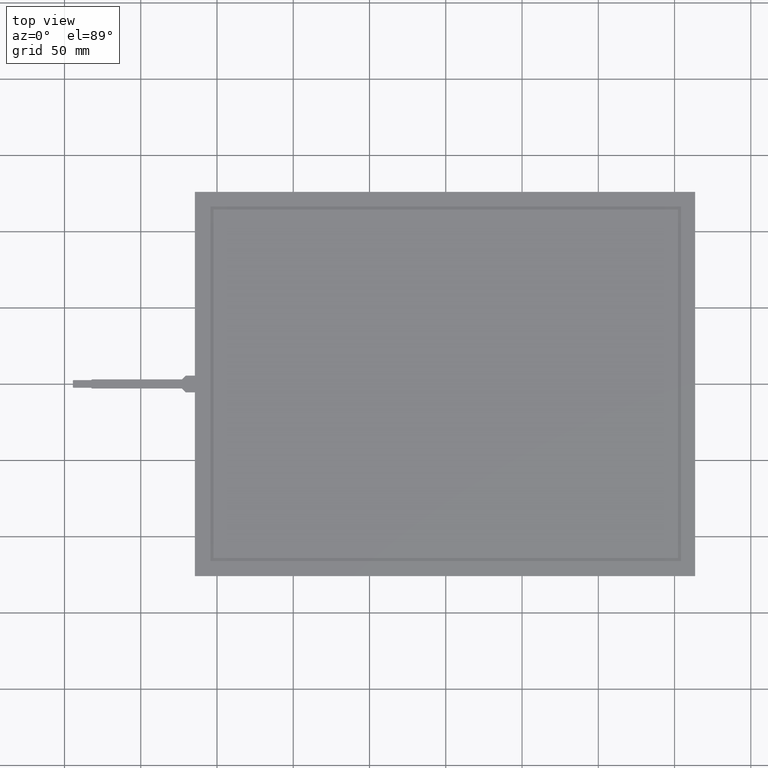
[diagram: clean part render]
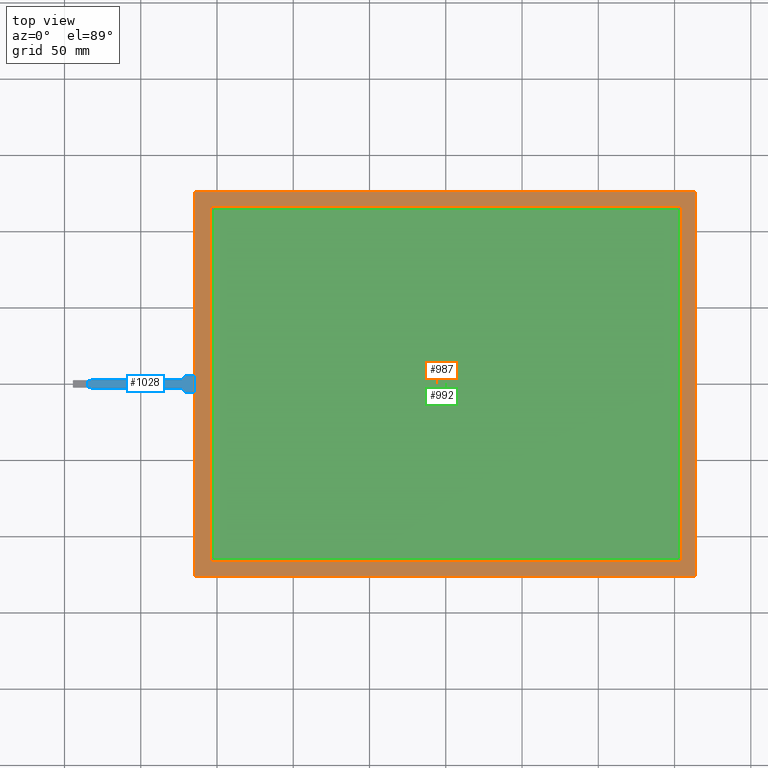
[diagram: same view with three faces highlighted in distinct colors, each labeled with its STEP entity id]
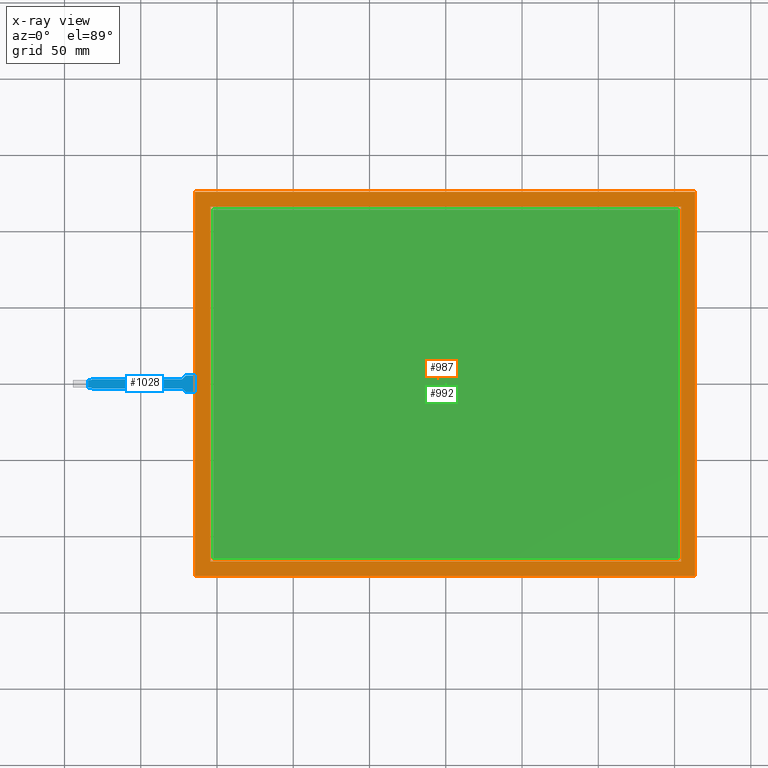
[diagram: x-ray of the same camera — body ghosted, the three highlighted faces saturated]
A machine part, top view with three faces highlighted in distinct colors.
The next image is the same camera in x-ray (body ghosted, the three faces saturated) — at least one of them is partly hidden behind the body in this view.
Their STEP definitions:

[orange] entity #987 — the highlighted planar face has unit normal (0, 0, 1).
#67=FACE_BOUND('',#131,.T.);
#77=FACE_OUTER_BOUND('',#130,.T.);
#130=EDGE_LOOP('',(#696,#697,#698,#699));
#131=EDGE_LOOP('',(#700,#701,#702,#703));
#186=LINE('',#1399,#312);
#190=LINE('',#1407,#316);
#193=LINE('',#1413,#319);
#196=LINE('',#1418,#322);
#198=LINE('',#1424,#324);
#199=LINE('',#1426,#325);
#200=LINE('',#1428,#326);
#201=LINE('',#1429,#327);
#312=VECTOR('',#1139,10.);
#316=VECTOR('',#1145,10.);
#319=VECTOR('',#1150,10.);
#322=VECTOR('',#1155,10.);
#324=VECTOR('',#1161,10.);
#325=VECTOR('',#1162,10.);
#326=VECTOR('',#1163,10.);
#327=VECTOR('',#1164,10.);
#434=VERTEX_POINT('',#1397);
#435=VERTEX_POINT('',#1398);
#438=VERTEX_POINT('',#1406);
#440=VERTEX_POINT('',#1412);
#442=VERTEX_POINT('',#1422);
#443=VERTEX_POINT('',#1423);
#444=VERTEX_POINT('',#1425);
#445=VERTEX_POINT('',#1427);
#530=EDGE_CURVE('',#434,#435,#186,.T.);
#534=EDGE_CURVE('',#438,#434,#190,.T.);
#537=EDGE_CURVE('',#440,#438,#193,.T.);
#540=EDGE_CURVE('',#435,#440,#196,.T.);
#542=EDGE_CURVE('',#442,#443,#198,.T.);
#543=EDGE_CURVE('',#443,#444,#199,.T.);
#544=EDGE_CURVE('',#444,#445,#200,.T.);
#545=EDGE_CURVE('',#445,#442,#201,.T.);
#696=ORIENTED_EDGE('',*,*,#542,.T.);
#697=ORIENTED_EDGE('',*,*,#543,.T.);
#698=ORIENTED_EDGE('',*,*,#544,.T.);
#699=ORIENTED_EDGE('',*,*,#545,.T.);
#700=ORIENTED_EDGE('',*,*,#530,.T.);
#701=ORIENTED_EDGE('',*,*,#540,.T.);
#702=ORIENTED_EDGE('',*,*,#537,.T.);
#703=ORIENTED_EDGE('',*,*,#534,.T.);
#941=PLANE('',#1060);
#987=ADVANCED_FACE('',(#77,#67),#941,.T.);
#1060=AXIS2_PLACEMENT_3D('',#1421,#1159,#1160);
#1139=DIRECTION('',(-2.29108792699946E-16,1.,0.));
#1145=DIRECTION('',(-1.,-1.72668584330776E-16,0.));
#1150=DIRECTION('',(7.63695975666488E-17,-1.,0.));
#1155=DIRECTION('',(1.,0.,0.));
#1159=DIRECTION('center_axis',(0.,0.,1.));
#1160=DIRECTION('ref_axis',(1.,0.,0.));
#1161=DIRECTION('',(-1.,0.,0.));
#1162=DIRECTION('',(4.22942104619107E-16,-1.,0.));
#1163=DIRECTION('',(1.,5.41572207134223E-17,0.));
#1164=DIRECTION('',(0.,1.,0.));
#1397=CARTESIAN_POINT('',(-154.315,-116.3,0.));
#1398=CARTESIAN_POINT('',(-154.315,116.3,0.));
#1399=CARTESIAN_POINT('',(-154.315,-58.15,0.));
#1406=CARTESIAN_POINT('',(154.315,-116.3,0.));
#1407=CARTESIAN_POINT('',(76.905,-116.3,0.));
#1412=CARTESIAN_POINT('',(154.315,116.3,0.));
#1413=CARTESIAN_POINT('',(154.315,58.15,0.));
#1418=CARTESIAN_POINT('',(-77.41,116.3,0.));
#1421=CARTESIAN_POINT('Origin',(-0.505000000000013,-8.88178419700125E-15,
0.));
#1422=CARTESIAN_POINT('',(163.495,126.,0.));
#1423=CARTESIAN_POINT('',(-164.505,126.,0.));
#1424=CARTESIAN_POINT('',(163.495,126.,0.));
#1425=CARTESIAN_POINT('',(-164.505,-126.,0.));
#1426=CARTESIAN_POINT('',(-164.505,126.,0.));
#1427=CARTESIAN_POINT('',(163.495,-126.,0.));
#1428=CARTESIAN_POINT('',(-164.505,-126.,0.));
#1429=CARTESIAN_POINT('',(163.495,-126.,0.));

[blue] entity #1028 — the highlighted planar face has unit normal (0, 0, 1).
#118=FACE_OUTER_BOUND('',#172,.T.);
#172=EDGE_LOOP('',(#908,#909,#910,#911,#912,#913,#914,#915,#916,#917,#918,
#919));
#264=LINE('',#1583,#390);
#267=LINE('',#1589,#393);
#271=LINE('',#1598,#397);
#275=LINE('',#1606,#401);
#278=LINE('',#1612,#404);
#281=LINE('',#1618,#407);
#284=LINE('',#1624,#410);
#287=LINE('',#1629,#413);
#289=LINE('',#1633,#415);
#292=LINE('',#1639,#418);
#295=LINE('',#1645,#421);
#298=LINE('',#1650,#424);
#390=VECTOR('',#1307,10.);
#393=VECTOR('',#1312,10.);
#397=VECTOR('',#1320,10.);
#401=VECTOR('',#1326,10.);
#404=VECTOR('',#1331,10.);
#407=VECTOR('',#1336,10.);
#410=VECTOR('',#1341,10.);
#413=VECTOR('',#1346,10.);
#415=VECTOR('',#1350,10.);
#418=VECTOR('',#1355,10.);
#421=VECTOR('',#1360,10.);
#424=VECTOR('',#1365,10.);
#495=VERTEX_POINT('',#1580);
#496=VERTEX_POINT('',#1582);
#498=VERTEX_POINT('',#1588);
#500=VERTEX_POINT('',#1596);
#501=VERTEX_POINT('',#1597);
#504=VERTEX_POINT('',#1605);
#506=VERTEX_POINT('',#1611);
#508=VERTEX_POINT('',#1617);
#510=VERTEX_POINT('',#1623);
#512=VERTEX_POINT('',#1632);
#514=VERTEX_POINT('',#1638);
#516=VERTEX_POINT('',#1644);
#620=EDGE_CURVE('',#496,#495,#264,.T.);
#623=EDGE_CURVE('',#498,#496,#267,.T.);
#627=EDGE_CURVE('',#500,#501,#271,.T.);
#631=EDGE_CURVE('',#501,#504,#275,.T.);
#634=EDGE_CURVE('',#504,#506,#278,.T.);
#637=EDGE_CURVE('',#506,#508,#281,.T.);
#640=EDGE_CURVE('',#508,#510,#284,.T.);
#643=EDGE_CURVE('',#510,#498,#287,.T.);
#645=EDGE_CURVE('',#495,#512,#289,.T.);
#648=EDGE_CURVE('',#512,#514,#292,.T.);
#651=EDGE_CURVE('',#514,#516,#295,.T.);
#654=EDGE_CURVE('',#516,#500,#298,.T.);
#908=ORIENTED_EDGE('',*,*,#623,.T.);
#909=ORIENTED_EDGE('',*,*,#620,.T.);
#910=ORIENTED_EDGE('',*,*,#645,.T.);
#911=ORIENTED_EDGE('',*,*,#648,.T.);
#912=ORIENTED_EDGE('',*,*,#651,.T.);
#913=ORIENTED_EDGE('',*,*,#654,.T.);
#914=ORIENTED_EDGE('',*,*,#627,.T.);
#915=ORIENTED_EDGE('',*,*,#631,.T.);
#916=ORIENTED_EDGE('',*,*,#634,.T.);
#917=ORIENTED_EDGE('',*,*,#637,.T.);
#918=ORIENTED_EDGE('',*,*,#640,.T.);
#919=ORIENTED_EDGE('',*,*,#643,.T.);
#976=PLANE('',#1113);
#1028=ADVANCED_FACE('',(#118),#976,.T.);
#1113=AXIS2_PLACEMENT_3D('',#1652,#1367,#1368);
#1307=DIRECTION('',(1.,7.40148683083438E-16,0.));
#1312=DIRECTION('',(0.,-1.,0.));
#1320=DIRECTION('',(0.,1.,0.));
#1326=DIRECTION('',(-1.,-7.40148683083436E-16,0.));
#1331=DIRECTION('',(-0.707106781186542,-0.707106781186553,0.));
#1336=DIRECTION('',(-1.,-1.88173394004264E-16,0.));
#1341=DIRECTION('',(-0.707106781186559,-0.707106781186537,0.));
#1346=DIRECTION('',(-1.,-9.25185853854298E-16,0.));
#1350=DIRECTION('',(0.707106781186548,-0.707106781186548,0.));
#1355=DIRECTION('',(1.,3.76346788008528E-16,0.));
#1360=DIRECTION('',(0.707106781186547,-0.707106781186548,0.));
#1365=DIRECTION('',(1.,0.,0.));
#1367=DIRECTION('center_axis',(0.,0.,1.));
#1368=DIRECTION('ref_axis',(1.,0.,0.));
#1580=CARTESIAN_POINT('',(-232.505,-2.50000000000001,0.2));
#1582=CARTESIAN_POINT('',(-234.505,-2.50000000000001,0.2));
#1583=CARTESIAN_POINT('',(-244.505,-2.50000000000002,0.2));
#1588=CARTESIAN_POINT('',(-234.505,2.49999999999999,0.2));
#1589=CARTESIAN_POINT('',(-234.505,-1.25,0.2));
#1596=CARTESIAN_POINT('',(-164.505,-5.5,0.2));
#1597=CARTESIAN_POINT('',(-164.505,5.5,0.2));
#1598=CARTESIAN_POINT('',(-164.505,-5.5,0.2));
#1605=CARTESIAN_POINT('',(-170.505,5.5,0.2));
#1606=CARTESIAN_POINT('',(-164.505,5.5,0.2));
#1611=CARTESIAN_POINT('',(-173.005,3.,0.2));
#1612=CARTESIAN_POINT('',(-170.505,5.5,0.2));
#1617=CARTESIAN_POINT('',(-232.005,2.99999999999998,0.2));
#1618=CARTESIAN_POINT('',(-173.005,3.,0.2));
#1623=CARTESIAN_POINT('',(-232.505,2.49999999999999,0.2));
#1624=CARTESIAN_POINT('',(-232.005,2.99999999999998,0.2));
#1629=CARTESIAN_POINT('',(-232.505,2.49999999999999,0.2));
#1632=CARTESIAN_POINT('',(-232.005,-3.00000000000002,0.2));
#1633=CARTESIAN_POINT('',(-232.505,-2.50000000000001,0.2));
#1638=CARTESIAN_POINT('',(-173.005,-2.99999999999999,0.2));
#1639=CARTESIAN_POINT('',(-232.005,-3.00000000000002,0.2));
#1644=CARTESIAN_POINT('',(-170.505,-5.5,0.2));
#1645=CARTESIAN_POINT('',(-173.005,-2.99999999999999,0.2));
#1650=CARTESIAN_POINT('',(-170.505,-5.5,0.2));
#1652=CARTESIAN_POINT('Origin',(-204.505,1.11022302462516E-15,0.2));

[green] entity #992 — the highlighted planar face has unit normal (0, 0, 1).
#82=FACE_OUTER_BOUND('',#136,.T.);
#136=EDGE_LOOP('',(#720,#721,#722,#723));
#174=LINE('',#1375,#300);
#178=LINE('',#1383,#304);
#181=LINE('',#1389,#307);
#184=LINE('',#1394,#310);
#300=VECTOR('',#1119,10.);
#304=VECTOR('',#1125,10.);
#307=VECTOR('',#1130,10.);
#310=VECTOR('',#1135,10.);
#426=VERTEX_POINT('',#1373);
#427=VERTEX_POINT('',#1374);
#430=VERTEX_POINT('',#1382);
#432=VERTEX_POINT('',#1388);
#518=EDGE_CURVE('',#426,#427,#174,.T.);
#522=EDGE_CURVE('',#430,#426,#178,.T.);
#525=EDGE_CURVE('',#432,#430,#181,.T.);
#528=EDGE_CURVE('',#427,#432,#184,.T.);
#720=ORIENTED_EDGE('',*,*,#518,.T.);
#721=ORIENTED_EDGE('',*,*,#528,.T.);
#722=ORIENTED_EDGE('',*,*,#525,.T.);
#723=ORIENTED_EDGE('',*,*,#522,.T.);
#946=PLANE('',#1065);
#992=ADVANCED_FACE('',(#82),#946,.T.);
#1065=AXIS2_PLACEMENT_3D('',#1446,#1181,#1182);
#1119=DIRECTION('',(1.,0.,0.));
#1125=DIRECTION('',(0.,-1.,0.));
#1130=DIRECTION('',(-1.,0.,0.));
#1135=DIRECTION('',(0.,1.,0.));
#1181=DIRECTION('center_axis',(0.,0.,1.));
#1182=DIRECTION('ref_axis',(1.,0.,0.));
#1373=CARTESIAN_POINT('',(-152.315,-114.3,0.));
#1374=CARTESIAN_POINT('',(152.315,-114.3,0.));
#1375=CARTESIAN_POINT('',(-76.41,-114.3,0.));
#1382=CARTESIAN_POINT('',(-152.315,114.3,0.));
#1383=CARTESIAN_POINT('',(-152.315,57.15,0.));
#1388=CARTESIAN_POINT('',(152.315,114.3,0.));
#1389=CARTESIAN_POINT('',(75.905,114.3,0.));
#1394=CARTESIAN_POINT('',(152.315,-57.15,0.));
#1446=CARTESIAN_POINT('Origin',(-0.505000000000013,-8.88178419700125E-15,
0.));